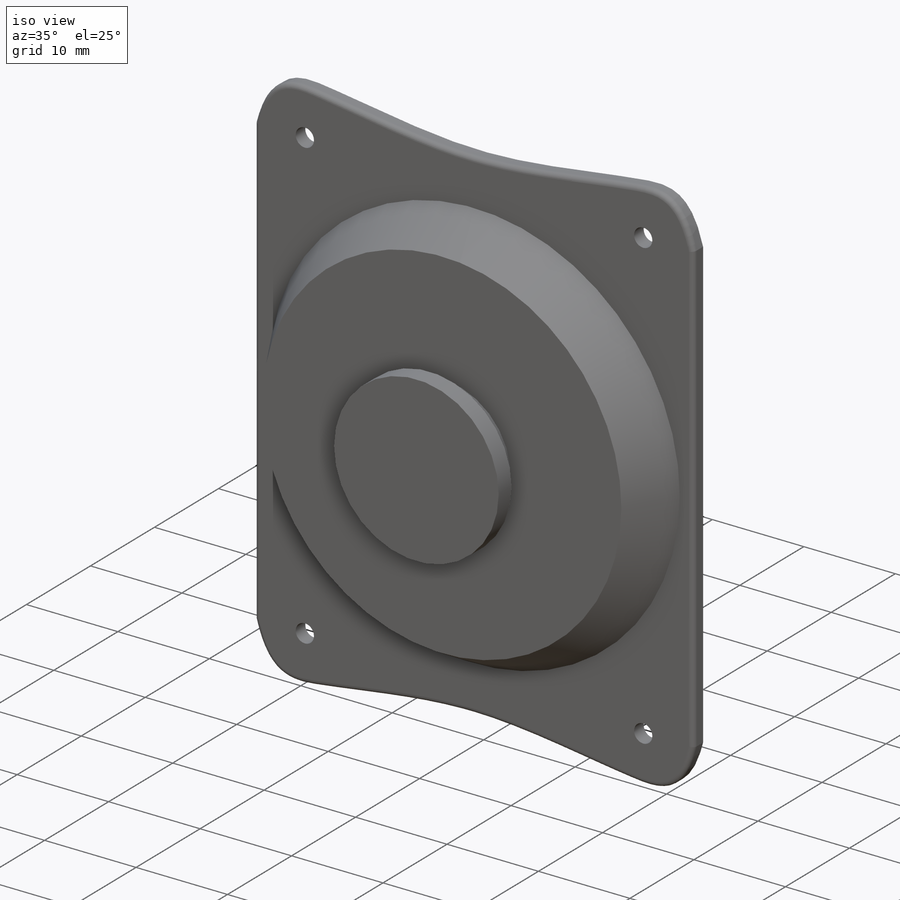
[diagram: iso view]
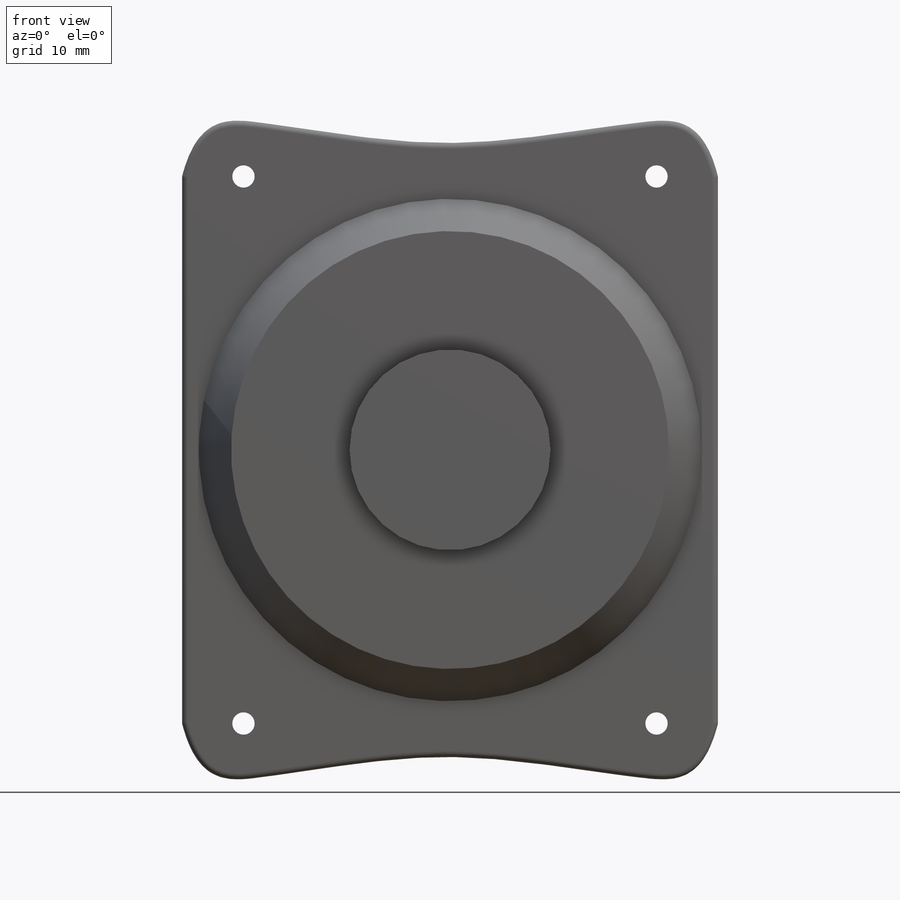
[diagram: front view]
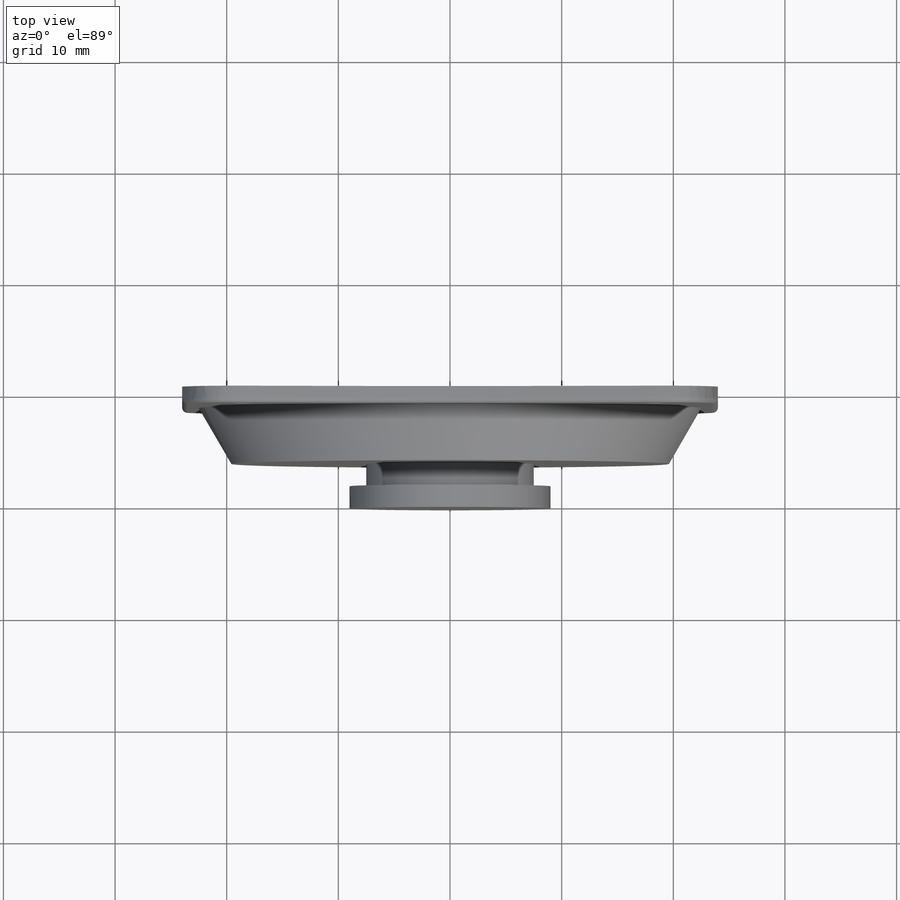
[diagram: top view]
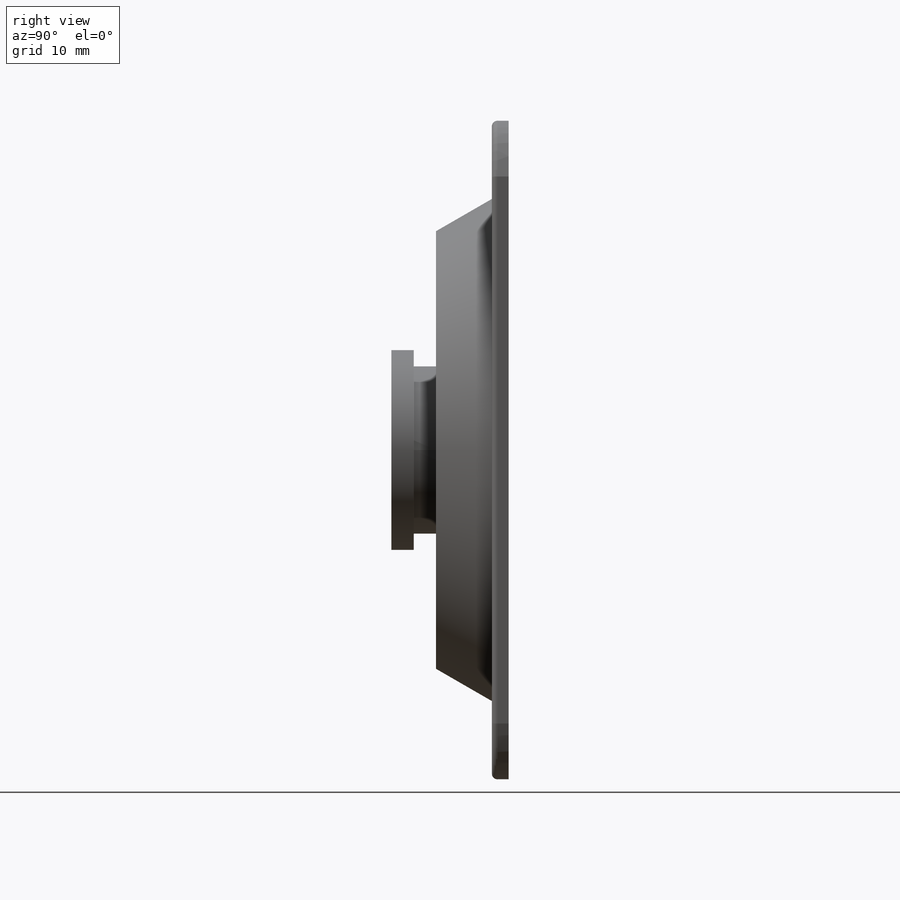
[diagram: right view]
SOLIDWORKS PART (.sldprt)
format: sldprt  version: not decoded by parser v0  size: 261,120 bytes
history: native  units: mm
features: sketch x5, extrude x4, material x1, fillet x1, cut_extrude x1 (+13 scaffold rows collapsed)
feature tree (25):
  scaffold x13  (default folders/planes/origin — collapsed)
  material  "Material <not specified>"
  sketch  "Sketch1"  dims[D1=19.0mm]
  extrude  "Boss-Extrude1"  Depth=1.5mm
  sketch  "Sketch2"  dims[D1=45.0mm]
  extrude  "Boss-Extrude4"  Depth=5mm
  sketch  "Sketch3"  dims[D1=~5.127705mm]
  extrude  "Boss-Extrude5"  Depth=2mm
  sketch  "Sketch4"  dims[D1=~4.104793mm]
  extrude  "Boss-Extrude7"  Depth=2mm
  fillet  "Fillet4"  Radius=0.5mm
  sketch  "Sketch5"  dims[c1.D1=~3.980726mm c1.D2=~1.990363mm c2.D1=5.0mm]
  cut_extrude  "Cut-Extrude1"  Depth=2mm
decode coverage: 11 of 11 modeling features carry decoded parameters
note: ~ marks probable driven/reference dimensions
note: suppression state not decoded; provenance and decode notes live in map.json
